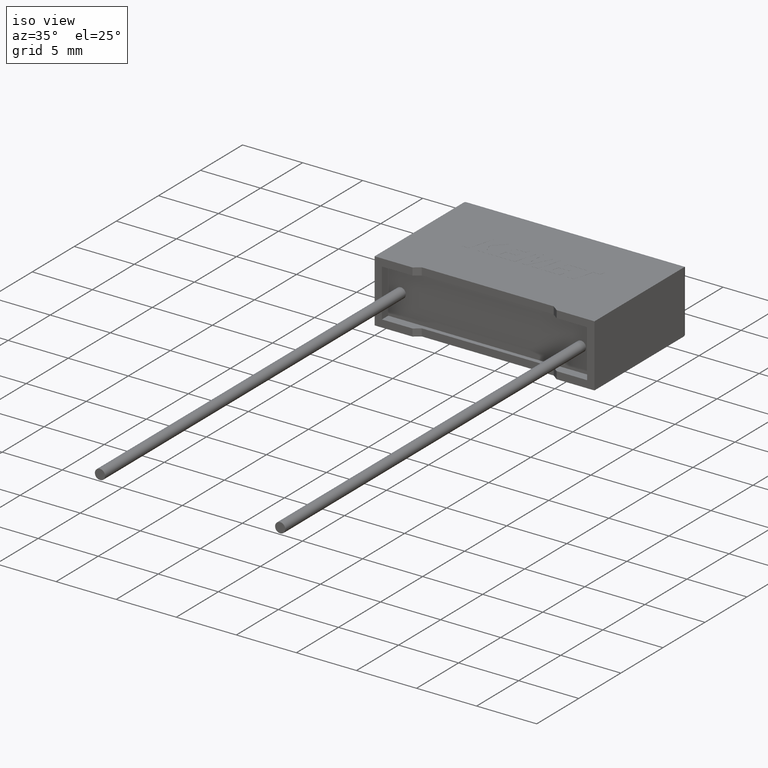
[diagram: clean part render]
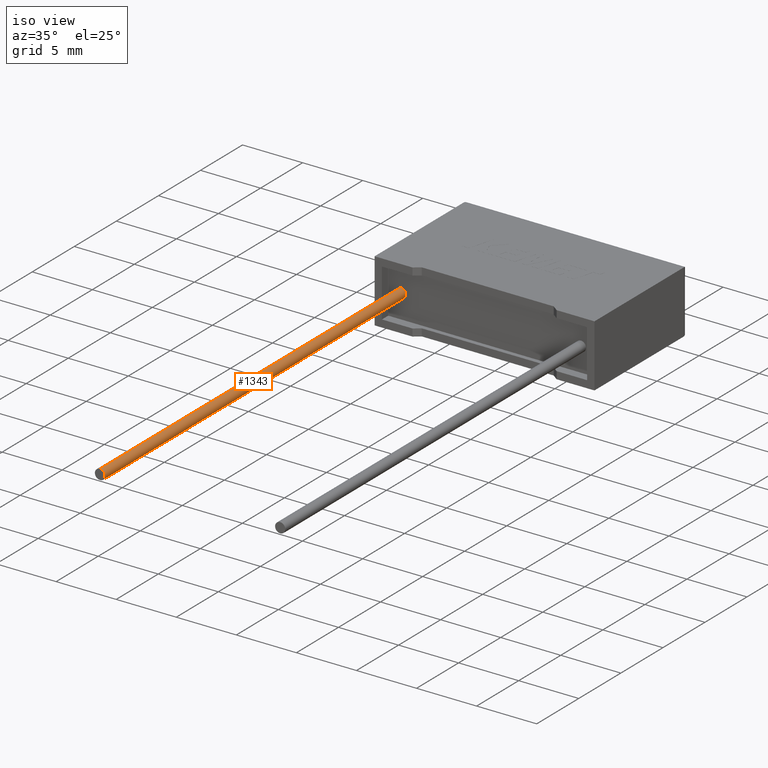
[diagram: same view with one face highlighted and labeled with its STEP entity id]
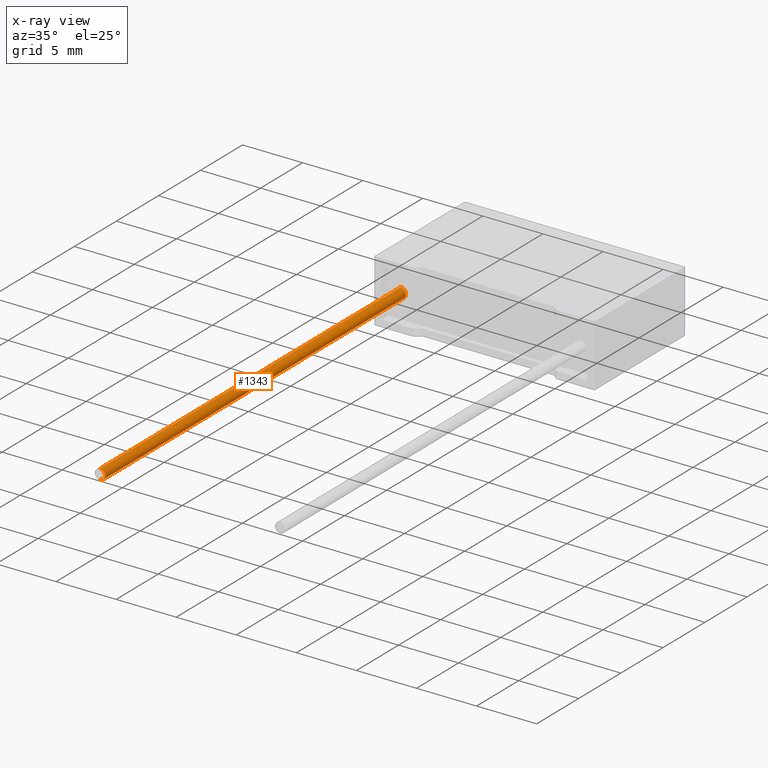
[diagram: x-ray of the same camera — body ghosted, the highlighted face saturated]
A machine part, iso view. The second image highlights one B-rep face of the part: STEP entity #1343.
The next image is the same camera in x-ray: the body ghosted, the highlighted face saturated — about 0% of this face is hidden behind the body in this view.
In plain terms, the highlighted cylindrical surface (edge-blend (fillet) strip) has radius 0.425 mm, axis along (-0, 1, -0).
Its self-contained STEP definition (entity closure, byte-faithful):
#90 = CYLINDRICAL_SURFACE ( 'NONE', #2146, 0.4250000000000000444 ) ;
#122 = DIRECTION ( 'NONE',  ( -0.000000000000000000, 1.000000000000000000, -0.000000000000000000 ) ) ;
#127 = CIRCLE ( 'NONE', #2492, 0.4250000000000000444 ) ;
#195 = LINE ( 'NONE', #2760, #2703 ) ;
#238 = CARTESIAN_POINT ( 'NONE',  ( 1.650000000000000355, -34.99999999999999289, 2.174999999999999822 ) ) ;
#541 = EDGE_CURVE ( 'NONE', #2998, #1289, #2871, .T. ) ;
#668 = DIRECTION ( 'NONE',  ( 0.000000000000000000, -1.000000000000000000, 0.000000000000000000 ) ) ;
#691 = CARTESIAN_POINT ( 'NONE',  ( 1.650000000000000355, 0.7500000000000000000, 2.174999999999999822 ) ) ;
#846 = CARTESIAN_POINT ( 'NONE',  ( 1.650000000000000355, -34.99999999999999289, 2.600000000000000089 ) ) ;
#904 = VERTEX_POINT ( 'NONE', #2817 ) ;
#1117 = FACE_OUTER_BOUND ( 'NONE', #1545, .T. ) ;
#1206 = LINE ( 'NONE', #238, #2444 ) ;
#1289 = VERTEX_POINT ( 'NONE', #1291 ) ;
#1291 = CARTESIAN_POINT ( 'NONE',  ( 1.650000000000000355, 0.7500000000000000000, 3.024999999999999911 ) ) ;
#1305 = DIRECTION ( 'NONE',  ( 0.000000000000000000, 0.000000000000000000, -1.000000000000000000 ) ) ;
#1343 = ADVANCED_FACE ( 'NONE', ( #1117 ), #90, .T. ) ;
#1359 = CARTESIAN_POINT ( 'NONE',  ( 1.650000000000000355, -34.99999999999999289, 2.600000000000000089 ) ) ;
#1385 = DIRECTION ( 'NONE',  ( -0.000000000000000000, 1.000000000000000000, -0.000000000000000000 ) ) ;
#1455 = VERTEX_POINT ( 'NONE', #2072 ) ;
#1501 = DIRECTION ( 'NONE',  ( 0.000000000000000000, -1.000000000000000000, 0.000000000000000000 ) ) ;
#1506 = ORIENTED_EDGE ( 'NONE', *, *, #541, .T. ) ;
#1545 = EDGE_LOOP ( 'NONE', ( #2173, #2438, #1506, #2358 ) ) ;
#1607 = DIRECTION ( 'NONE',  ( -0.000000000000000000, 1.000000000000000000, -0.000000000000000000 ) ) ;
#1625 = DIRECTION ( 'NONE',  ( 0.000000000000000000, 0.000000000000000000, -1.000000000000000000 ) ) ;
#1855 = EDGE_CURVE ( 'NONE', #1455, #904, #127, .T. ) ;
#2072 = CARTESIAN_POINT ( 'NONE',  ( 1.650000000000000355, -34.99999999999999289, 2.174999999999999822 ) ) ;
#2146 = AXIS2_PLACEMENT_3D ( 'NONE', #846, #122, #2436 ) ;
#2160 = EDGE_CURVE ( 'NONE', #1455, #2998, #1206, .T. ) ;
#2173 = ORIENTED_EDGE ( 'NONE', *, *, #1855, .F. ) ;
#2358 = ORIENTED_EDGE ( 'NONE', *, *, #2897, .F. ) ;
#2436 = DIRECTION ( 'NONE',  ( 0.000000000000000000, 0.000000000000000000, 1.000000000000000000 ) ) ;
#2438 = ORIENTED_EDGE ( 'NONE', *, *, #2160, .T. ) ;
#2444 = VECTOR ( 'NONE', #1385, 1000.000000000000000 ) ;
#2492 = AXIS2_PLACEMENT_3D ( 'NONE', #1359, #668, #1625 ) ;
#2619 = AXIS2_PLACEMENT_3D ( 'NONE', #2915, #1501, #1305 ) ;
#2703 = VECTOR ( 'NONE', #1607, 1000.000000000000000 ) ;
#2760 = CARTESIAN_POINT ( 'NONE',  ( 1.650000000000000355, -34.99999999999999289, 3.024999999999999911 ) ) ;
#2817 = CARTESIAN_POINT ( 'NONE',  ( 1.650000000000000355, -34.99999999999999289, 3.024999999999999911 ) ) ;
#2871 = CIRCLE ( 'NONE', #2619, 0.4250000000000000444 ) ;
#2897 = EDGE_CURVE ( 'NONE', #904, #1289, #195, .T. ) ;
#2915 = CARTESIAN_POINT ( 'NONE',  ( 1.650000000000000355, 0.7500000000000000000, 2.600000000000000089 ) ) ;
#2998 = VERTEX_POINT ( 'NONE', #691 ) ;